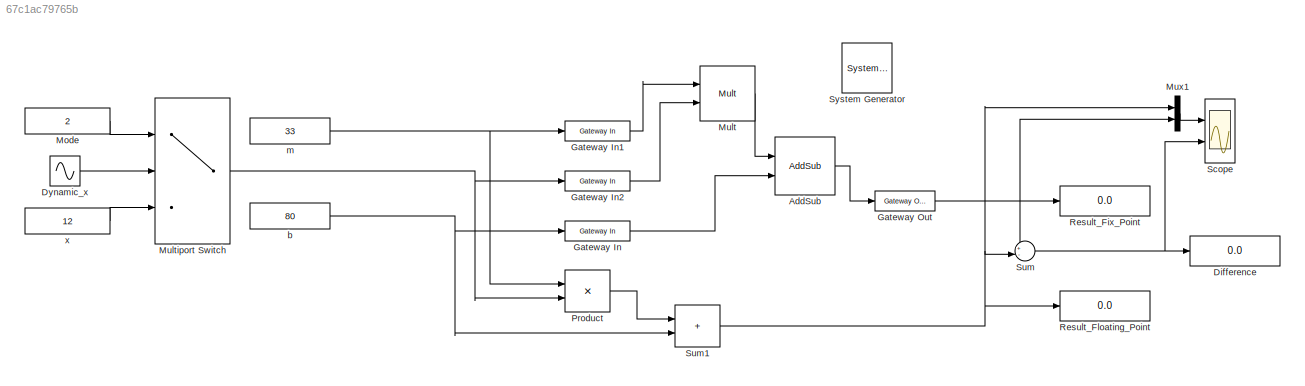
MODEL slx_67c1ac79765b
KIND model
CONFIG AbsTol = auto
CONFIG EnableMultiTasking = off
CONFIG FixedStep = auto
CONFIG InitFcn = , if any(exist('rtifpga_mdlclblib', 'file') ~= 0), rtifpga_mdlclblib('Init', bdroot); end,\n
CONFIG MaxStep = auto
CONFIG MinStep = auto
CONFIG PostLoadFcn = , if any(exist('dsrtsu_mdlpostloadfcn', 'file') == [2, 3, 6]), try dsrtsu_mdlpostloadfcn('Execute', bdroot); catch fprintf('Error in PostLoadFcn (dsrtsu_mdlpostloadfcn) for model "%s":\n %s\n', bdroot, lasterr); end, end, \n
CONFIG RelTol = 1e-3
CONFIG SampleTimeConstraint = Unconstrained
CONFIG SolverName = ode45
CONFIG StartTime = 0.0
CONFIG StopTime = 100000
BLOCK [Reference]  System Generator  REF=xbsIndex_r4/ System Generator
  AttributesFormatString = System\nGenerator
  Ports = []
  SourceBlock = xbsIndex_r4/ System Generator
  SourceType = Xilinx System Generator Block
  Tag = genX
  UserDataPersistent = on
BLOCK [Reference] AddSub  REF=hdlBasic/AddSub
  Ports = [2, 1]
  SourceBlock = hdlBasic/AddSub
  SourceType = Adder/Subtracter Block
BLOCK [Display] Difference
  Decimation = 1
  Ports = [1]
BLOCK [Sin] Dynamic_x
  Amplitude = 33
  Frequency = pi/4000
  Ports = [0, 1]
BLOCK [Reference] Gateway In  REF=hdlBasic/Gateway In
  Ports = [1, 1]
  SourceBlock = hdlBasic/Gateway In
  SourceType = Gateway In Block
BLOCK [Reference] Gateway In1  REF=hdlBasic/Gateway In
  Ports = [1, 1]
  SourceBlock = hdlBasic/Gateway In
  SourceType = Gateway In Block
BLOCK [Reference] Gateway In2  REF=hdlBasic/Gateway In
  Ports = [1, 1]
  SourceBlock = hdlBasic/Gateway In
  SourceType = Gateway In Block
BLOCK [Reference] Gateway Out  REF=hdlBasic/Gateway Out
  Ports = [1, 1]
  SourceBlock = hdlBasic/Gateway Out
  SourceType = Gateway Out Block
BLOCK [Constant] Mode
  Value = 2
BLOCK [Reference] Mult  REF=hdlBasic/Mult
  Ports = [2, 1]
  SourceBlock = hdlBasic/Mult
  SourceType = Multiplier Block
BLOCK [MultiPortSwitch] Multiport Switch
  DiagnosticForDefault = None
  InputSameDT = off
  Inputs = 2
  Ports = [3, 1]
  SaturateOnIntegerOverflow = off
BLOCK [Mux] Mux1
  DisplayOption = bar
  Inputs = 2
  Ports = [2, 1]
BLOCK [Product] Product
  Ports = [2, 1]
BLOCK [Display] Result_Fix_Point
  Decimation = 1
  Ports = [1]
BLOCK [Display] Result_Floating_Point
  Decimation = 1
  Ports = [1]
BLOCK [Scope] Scope
  Floating = off
  NumInputPorts = 2
  Ports = [2]
  ScopeSpecificationString = C++SS(StrPVP('Open','off'),StrPVP('TimeRange','auto'),StrPVP('TickLabels','OneTimeTick'),StrPVP('ShowLegends','off'),StrPVP('LimitDataPoints','off'),StrPVP('MaxDataPoints','5000'),StrPVP('SaveToWorkspace','off'),StrPVP('SaveName','ScopeData'),StrPVP('YMin','-5~-5'),StrPVP('YMax','5~5'),StrPVP('BlockParamSampleInput','off'),StrPVP('BlockParamSampleTime','-1'),StrPVP('ZoomMode','yonly'),StrPVP('Grid...<+602ch>
BLOCK [Sum] Sum
  Inputs = +-|
  Ports = [2, 1]
BLOCK [Sum] Sum1
  IconShape = rectangular
  Ports = [2, 1]
BLOCK [Constant] b
  Value = 80
BLOCK [Constant] m
  Value = 33
BLOCK [Constant] x
  Value = 12
LINE AddSub:1 -> Gateway Out:1
LINE Dynamic_x:1 -> Multiport Switch:2
LINE Gateway In1:1 -> Mult:1
LINE Gateway In2:1 -> Mult:2
LINE Gateway In:1 -> AddSub:2
NET Gateway Out:1 -> Mux1:2, Result_Fix_Point:1, Sum:1
LINE Mode:1 -> Multiport Switch:1
LINE Mult:1 -> AddSub:1
NET Multiport Switch:1 -> Gateway In2:1, Product:2
LINE Mux1:1 -> Scope:1
LINE Product:1 -> Sum1:1
NET Sum1:1 -> Mux1:1, Result_Floating_Point:1, Sum:2
NET Sum:1 -> Difference:1, Scope:2
NET b:1 -> Gateway In:1, Sum1:2
NET m:1 -> Gateway In1:1, Product:1
LINE x:1 -> Multiport Switch:3
note: NET lines group one-source signal fan-out (src -> all destinations, sorted); 1:1 wires keep LINE
